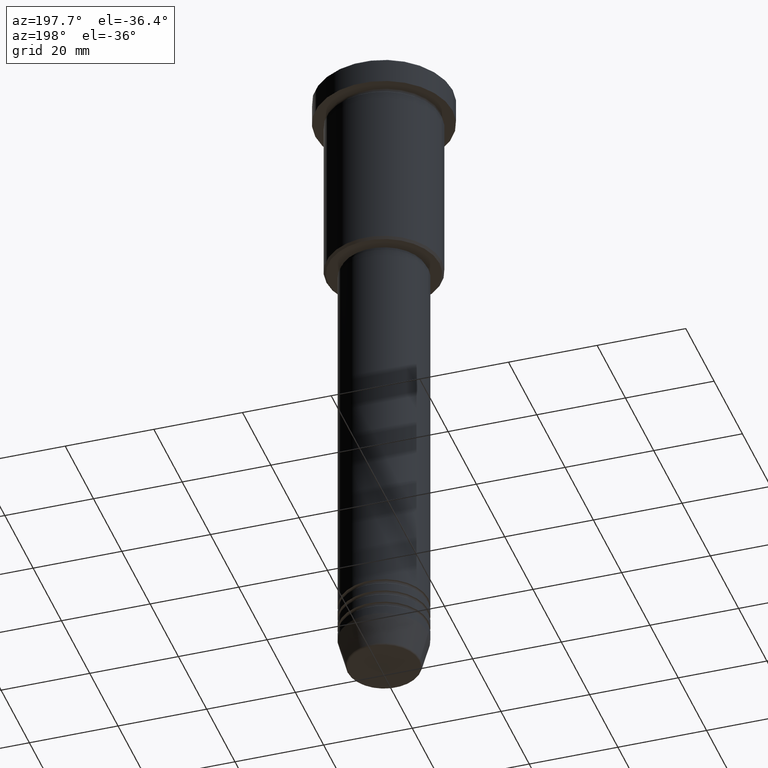
[diagram: clean part render]
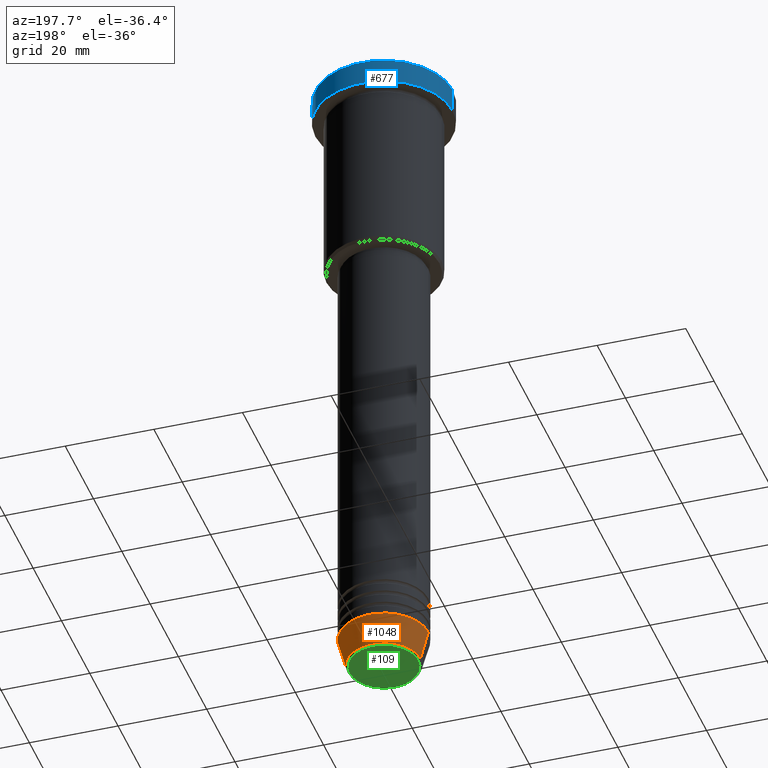
[diagram: same view with three faces highlighted in distinct colors, each labeled with its STEP entity id]
A machine part, auxiliary view with three faces highlighted in distinct colors.
Their STEP definitions:

[orange] entity #1048 — the highlighted conical surface has half-angle 15 deg.
#25 = CARTESIAN_POINT ( 'NONE',  ( -8.223655072137198374, 1.115877042642912448E-15, -150.6294095225512137 ) ) ;
#49 = DIRECTION ( 'NONE',  ( -0.000000000000000000, -0.000000000000000000, 1.000000000000000000 ) ) ;
#82 = ORIENTED_EDGE ( 'NONE', *, *, #172, .F. ) ;
#90 = ORIENTED_EDGE ( 'NONE', *, *, #917, .F. ) ;
#91 = AXIS2_PLACEMENT_3D ( 'NONE', #494, #581, #1024 ) ;
#143 = CARTESIAN_POINT ( 'NONE',  ( 0.000000000000000000, 0.000000000000000000, -144.0000000000000000 ) ) ;
#170 = CIRCLE ( 'NONE', #653, 10.00000000000000000 ) ;
#171 = FACE_OUTER_BOUND ( 'NONE', #697, .T. ) ;
#172 = EDGE_CURVE ( 'NONE', #371, #657, #254, .T. ) ;
#184 = ORIENTED_EDGE ( 'NONE', *, *, #817, .T. ) ;
#240 = CARTESIAN_POINT ( 'NONE',  ( -10.00000000000000000, 1.224646799147353256E-15, -144.0000000000000000 ) ) ;
#254 = LINE ( 'NONE', #436, #762 ) ;
#297 = CARTESIAN_POINT ( 'NONE',  ( 0.000000000000000000, 0.000000000000000000, -144.0000000000000000 ) ) ;
#301 = DIRECTION ( 'NONE',  ( 1.000000000000000000, 0.000000000000000000, 0.000000000000000000 ) ) ;
#328 = EDGE_CURVE ( 'NONE', #371, #910, #617, .T. ) ;
#359 = CARTESIAN_POINT ( 'NONE',  ( 8.223655072137198374, 0.000000000000000000, -150.6294095225512137 ) ) ;
#371 = VERTEX_POINT ( 'NONE', #359 ) ;
#408 = DIRECTION ( 'NONE',  ( -0.2588190451025213501, 3.169619151431772337E-17, 0.9659258262890680902 ) ) ;
#414 = CARTESIAN_POINT ( 'NONE',  ( 10.00000000000000000, 0.000000000000000000, -144.0000000000000000 ) ) ;
#436 = CARTESIAN_POINT ( 'NONE',  ( 10.00000000000000000, 0.000000000000000000, -144.0000000000000000 ) ) ;
#447 = AXIS2_PLACEMENT_3D ( 'NONE', #143, #49, #700 ) ;
#492 = DIRECTION ( 'NONE',  ( -0.000000000000000000, -0.000000000000000000, 1.000000000000000000 ) ) ;
#494 = CARTESIAN_POINT ( 'NONE',  ( 0.000000000000000000, 0.000000000000000000, -150.6294095225512137 ) ) ;
#529 = VERTEX_POINT ( 'NONE', #1016 ) ;
#581 = DIRECTION ( 'NONE',  ( -0.000000000000000000, -0.000000000000000000, 1.000000000000000000 ) ) ;
#617 = CIRCLE ( 'NONE', #91, 8.223655072137198374 ) ;
#653 = AXIS2_PLACEMENT_3D ( 'NONE', #297, #492, #301 ) ;
#657 = VERTEX_POINT ( 'NONE', #414 ) ;
#697 = EDGE_LOOP ( 'NONE', ( #737, #184, #90, #82 ) ) ;
#700 = DIRECTION ( 'NONE',  ( 1.000000000000000000, 0.000000000000000000, 0.000000000000000000 ) ) ;
#737 = ORIENTED_EDGE ( 'NONE', *, *, #328, .T. ) ;
#762 = VECTOR ( 'NONE', #799, 1000.000000000000000 ) ;
#799 = DIRECTION ( 'NONE',  ( 0.2588190451025213501, 0.000000000000000000, 0.9659258262890680902 ) ) ;
#817 = EDGE_CURVE ( 'NONE', #910, #529, #1140, .T. ) ;
#910 = VERTEX_POINT ( 'NONE', #25 ) ;
#917 = EDGE_CURVE ( 'NONE', #657, #529, #170, .T. ) ;
#1016 = CARTESIAN_POINT ( 'NONE',  ( -10.00000000000000000, 1.224646799147353256E-15, -144.0000000000000000 ) ) ;
#1024 = DIRECTION ( 'NONE',  ( 1.000000000000000000, 0.000000000000000000, 0.000000000000000000 ) ) ;
#1048 = ADVANCED_FACE ( 'NONE', ( #171 ), #1086, .T. ) ;
#1086 = CONICAL_SURFACE ( 'NONE', #447, 10.00000000000000000, 0.2617993877991500740 ) ;
#1100 = VECTOR ( 'NONE', #408, 1000.000000000000000 ) ;
#1140 = LINE ( 'NONE', #240, #1100 ) ;

[blue] entity #677 — the highlighted cylindrical surface (partial cylindrical patch) has radius 15.5 mm, axis along (-0, -0, 1).
#128 = CIRCLE ( 'NONE', #808, 15.50000000000000000 ) ;
#223 = DIRECTION ( 'NONE',  ( 1.000000000000000000, 0.000000000000000000, 0.000000000000000000 ) ) ;
#294 = DIRECTION ( 'NONE',  ( -0.000000000000000000, -0.000000000000000000, 1.000000000000000000 ) ) ;
#295 = EDGE_CURVE ( 'NONE', #557, #462, #658, .T. ) ;
#339 = DIRECTION ( 'NONE',  ( 1.000000000000000000, 0.000000000000000000, 0.000000000000000000 ) ) ;
#365 = FACE_OUTER_BOUND ( 'NONE', #397, .T. ) ;
#374 = EDGE_CURVE ( 'NONE', #462, #729, #863, .T. ) ;
#397 = EDGE_LOOP ( 'NONE', ( #843, #828, #433, #471 ) ) ;
#418 = LINE ( 'NONE', #1123, #852 ) ;
#433 = ORIENTED_EDGE ( 'NONE', *, *, #374, .T. ) ;
#441 = CARTESIAN_POINT ( 'NONE',  ( 15.50000000000000000, 0.000000000000000000, -5.999999999999995559 ) ) ;
#462 = VERTEX_POINT ( 'NONE', #630 ) ;
#471 = ORIENTED_EDGE ( 'NONE', *, *, #878, .F. ) ;
#553 = CYLINDRICAL_SURFACE ( 'NONE', #790, 15.50000000000000000 ) ;
#557 = VERTEX_POINT ( 'NONE', #1132 ) ;
#579 = DIRECTION ( 'NONE',  ( 1.000000000000000000, 0.000000000000000000, 0.000000000000000000 ) ) ;
#624 = CARTESIAN_POINT ( 'NONE',  ( 15.50000000000000000, 0.000000000000000000, -0.4999999999999848455 ) ) ;
#630 = CARTESIAN_POINT ( 'NONE',  ( -15.50000000000000000, 1.898202538678397557E-15, -0.4999999999999848455 ) ) ;
#632 = DIRECTION ( 'NONE',  ( 0.000000000000000000, 0.000000000000000000, -1.000000000000000000 ) ) ;
#658 = LINE ( 'NONE', #925, #1113 ) ;
#663 = DIRECTION ( 'NONE',  ( -0.000000000000000000, -0.000000000000000000, 1.000000000000000000 ) ) ;
#677 = ADVANCED_FACE ( 'NONE', ( #365 ), #553, .T. ) ;
#727 = DIRECTION ( 'NONE',  ( -0.000000000000000000, -0.000000000000000000, 1.000000000000000000 ) ) ;
#729 = VERTEX_POINT ( 'NONE', #624 ) ;
#775 = CARTESIAN_POINT ( 'NONE',  ( 0.000000000000000000, 0.000000000000000000, -5.999999999999995559 ) ) ;
#790 = AXIS2_PLACEMENT_3D ( 'NONE', #825, #727, #223 ) ;
#808 = AXIS2_PLACEMENT_3D ( 'NONE', #775, #663, #579 ) ;
#825 = CARTESIAN_POINT ( 'NONE',  ( 0.000000000000000000, 0.000000000000000000, 0.000000000000000000 ) ) ;
#828 = ORIENTED_EDGE ( 'NONE', *, *, #295, .T. ) ;
#843 = ORIENTED_EDGE ( 'NONE', *, *, #945, .T. ) ;
#852 = VECTOR ( 'NONE', #941, 1000.000000000000000 ) ;
#863 = CIRCLE ( 'NONE', #944, 15.50000000000000000 ) ;
#878 = EDGE_CURVE ( 'NONE', #1121, #729, #418, .T. ) ;
#925 = CARTESIAN_POINT ( 'NONE',  ( -15.50000000000000000, 1.898202538678397557E-15, 0.000000000000000000 ) ) ;
#941 = DIRECTION ( 'NONE',  ( -0.000000000000000000, -0.000000000000000000, 1.000000000000000000 ) ) ;
#944 = AXIS2_PLACEMENT_3D ( 'NONE', #1163, #632, #339 ) ;
#945 = EDGE_CURVE ( 'NONE', #1121, #557, #128, .T. ) ;
#1113 = VECTOR ( 'NONE', #294, 1000.000000000000000 ) ;
#1121 = VERTEX_POINT ( 'NONE', #441 ) ;
#1123 = CARTESIAN_POINT ( 'NONE',  ( 15.50000000000000000, 0.000000000000000000, 0.000000000000000000 ) ) ;
#1132 = CARTESIAN_POINT ( 'NONE',  ( -15.50000000000000000, 1.898202538678397557E-15, -5.999999999999995559 ) ) ;
#1163 = CARTESIAN_POINT ( 'NONE',  ( 0.000000000000000000, 0.000000000000000000, -0.4999999999999848455 ) ) ;

[green] entity #109 — the highlighted planar face has unit normal (0, -0, 1).
#27 = DIRECTION ( 'NONE',  ( 1.000000000000000000, 0.000000000000000000, 0.000000000000000000 ) ) ;
#37 = CARTESIAN_POINT ( 'NONE',  ( 0.000000000000000000, 0.000000000000000000, -150.9999999999999716 ) ) ;
#53 = VERTEX_POINT ( 'NONE', #704 ) ;
#109 = ADVANCED_FACE ( 'NONE', ( #608 ), #518, .F. ) ;
#126 = ORIENTED_EDGE ( 'NONE', *, *, #531, .T. ) ;
#134 = EDGE_LOOP ( 'NONE', ( #126, #1084 ) ) ;
#248 = AXIS2_PLACEMENT_3D ( 'NONE', #664, #562, #649 ) ;
#330 = CARTESIAN_POINT ( 'NONE',  ( 0.000000000000000000, 0.000000000000000000, -150.9999999999999716 ) ) ;
#518 = PLANE ( 'NONE',  #541 ) ;
#531 = EDGE_CURVE ( 'NONE', #569, #53, #964, .T. ) ;
#541 = AXIS2_PLACEMENT_3D ( 'NONE', #330, #776, #686 ) ;
#562 = DIRECTION ( 'NONE',  ( 0.000000000000000000, 0.000000000000000000, -1.000000000000000000 ) ) ;
#569 = VERTEX_POINT ( 'NONE', #611 ) ;
#584 = DIRECTION ( 'NONE',  ( 0.000000000000000000, 0.000000000000000000, -1.000000000000000000 ) ) ;
#597 = CIRCLE ( 'NONE', #1023, 7.740692158992664496 ) ;
#605 = EDGE_CURVE ( 'NONE', #53, #569, #597, .T. ) ;
#608 = FACE_OUTER_BOUND ( 'NONE', #134, .T. ) ;
#611 = CARTESIAN_POINT ( 'NONE',  ( 7.740692158992664496, 0.000000000000000000, -150.9999999999999716 ) ) ;
#649 = DIRECTION ( 'NONE',  ( 1.000000000000000000, 0.000000000000000000, 0.000000000000000000 ) ) ;
#664 = CARTESIAN_POINT ( 'NONE',  ( 0.000000000000000000, 0.000000000000000000, -150.9999999999999716 ) ) ;
#686 = DIRECTION ( 'NONE',  ( 1.000000000000000000, 0.000000000000000000, 0.000000000000000000 ) ) ;
#704 = CARTESIAN_POINT ( 'NONE',  ( -7.740692158992664496, 9.775343368540048996E-16, -150.9999999999999716 ) ) ;
#776 = DIRECTION ( 'NONE',  ( 0.000000000000000000, -0.000000000000000000, 1.000000000000000000 ) ) ;
#964 = CIRCLE ( 'NONE', #248, 7.740692158992664496 ) ;
#1023 = AXIS2_PLACEMENT_3D ( 'NONE', #37, #584, #27 ) ;
#1084 = ORIENTED_EDGE ( 'NONE', *, *, #605, .T. ) ;